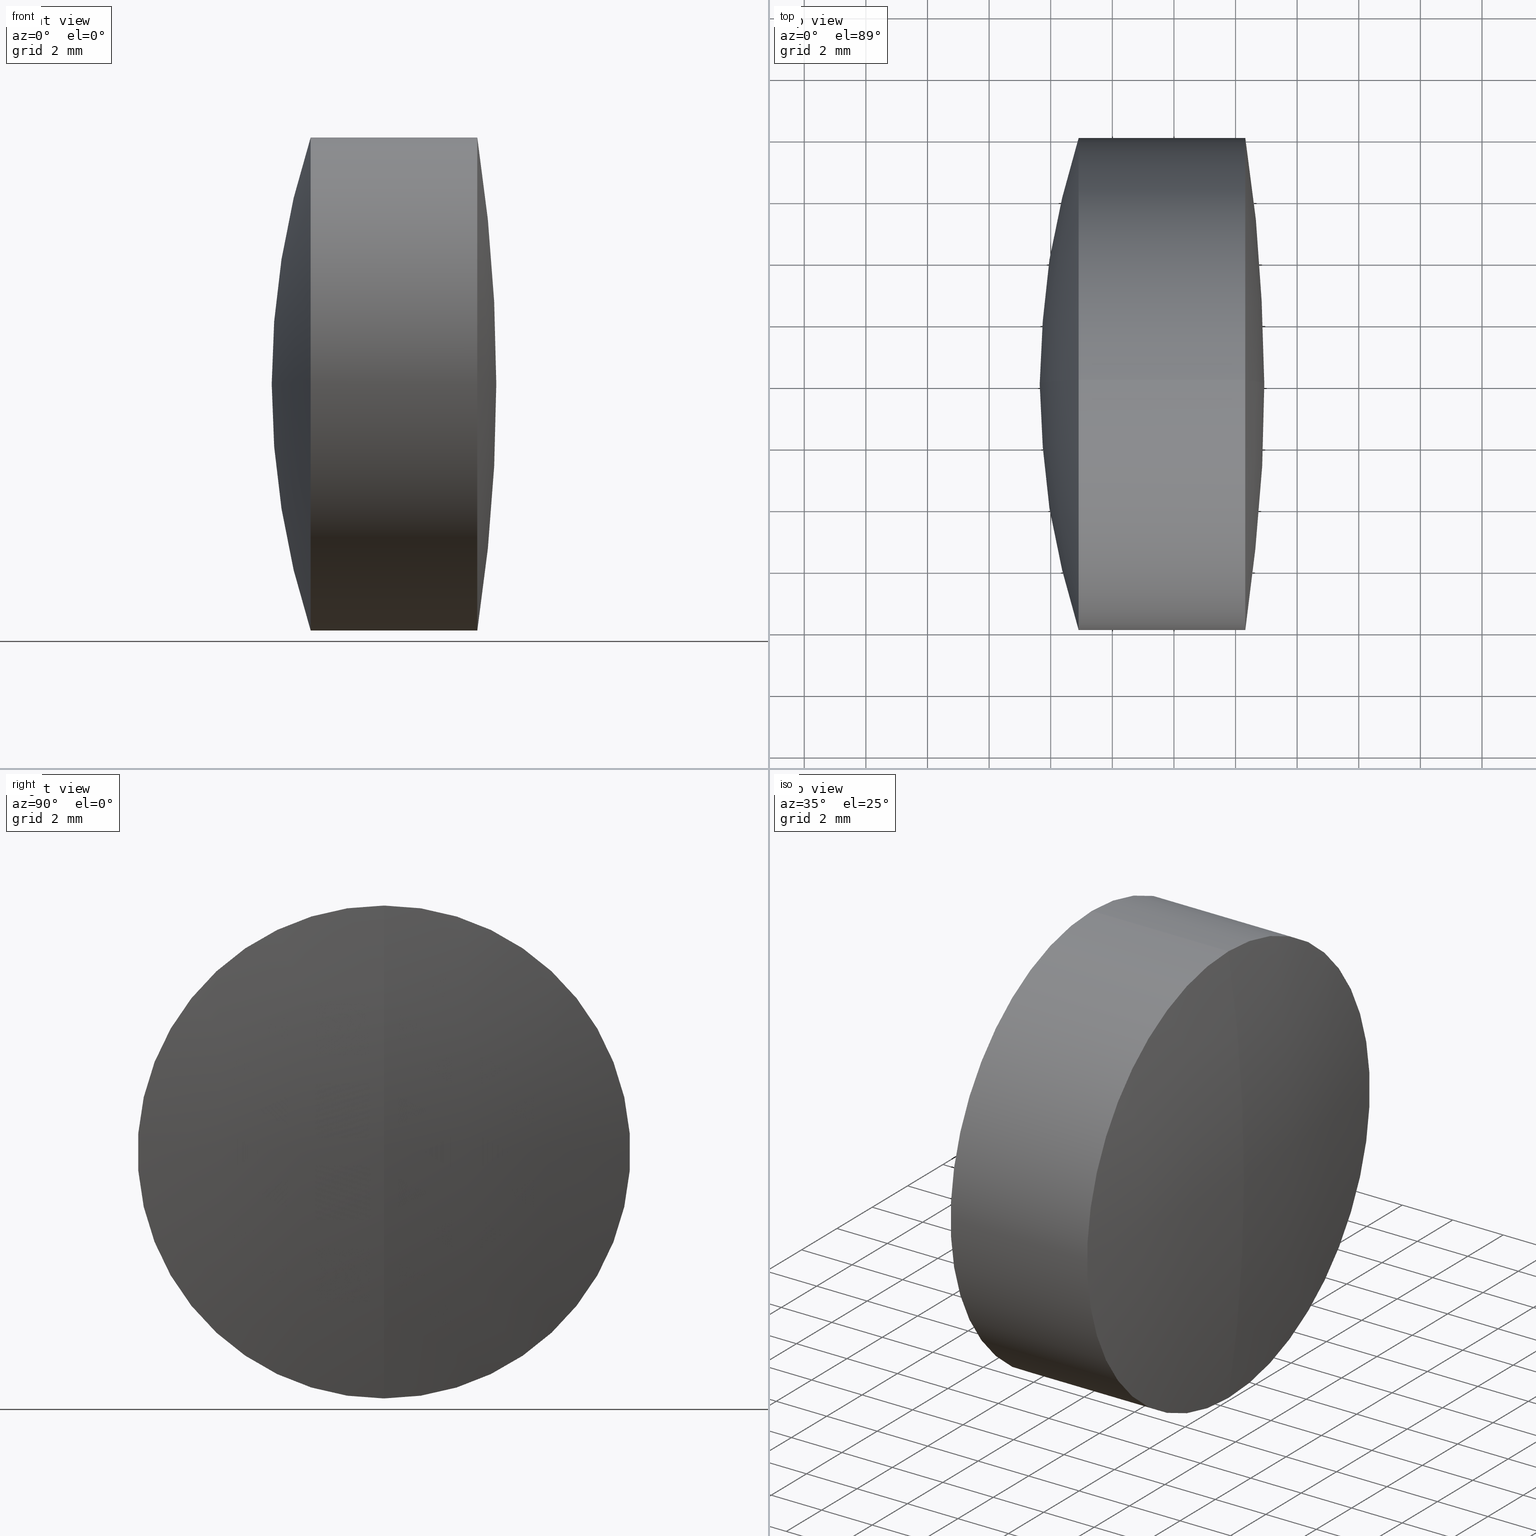
[diagram: canonical four-view strip — front | top / right | iso, engineering-drawing reading convention]
A machine part, canonical four-view strip (front | top / right | iso — engineering-drawing reading convention). The complete STEP part file that produces these views, byte-faithful:
ISO-10303-21;
HEADER;
FILE_DESCRIPTION (( 'STEP AP214' ),
    '1' );
FILE_NAME ('145032.STEP',
    '2019-05-11T03:39:28',
    ( 'user' ),
    ( '΢���й�' ),
    'SwSTEP 2.0',
    'SolidWorks 2016',
    '' );
FILE_SCHEMA (( 'AUTOMOTIVE_DESIGN' ));
ENDSEC;

DATA;
#1 =( NAMED_UNIT ( * ) PLANE_ANGLE_UNIT ( ) SI_UNIT ( $, .RADIAN. ) );
#2 = EDGE_CURVE ( 'NONE', #294, #319, #45, .T. ) ;
#3 = LINE ( 'NONE', #210, #97 ) ;
#4 = CARTESIAN_POINT ( 'NONE',  ( 26.31686387635513600, 0.0000000000000000000, 0.0000000000000000000 ) ) ;
#5 = ORIENTED_EDGE ( 'NONE', *, *, #343, .T. ) ;
#6 = CARTESIAN_POINT ( 'NONE',  ( 45.59904347957313300, 0.0000000000000000000, -1.740547722561040700E-016 ) ) ;
#7 = FACE_OUTER_BOUND ( 'NONE', #25, .T. ) ;
#8 = AXIS2_PLACEMENT_3D ( 'NONE', #269, #134, #163 ) ;
#9 = DIRECTION ( 'NONE',  ( -0.0000000000000000000, 1.000000000000000000, 1.224646799147353200E-016 ) ) ;
#10 = DIRECTION ( 'NONE',  ( 0.0000000000000000000, -1.000000000000000000, 0.0000000000000000000 ) ) ;
#11 = CARTESIAN_POINT ( 'NONE',  ( 24.53304347957312700, 0.0000000000000000000, 1.100059859623086400E-015 ) ) ;
#12 = DIRECTION ( 'NONE',  ( 0.0000000000000000000, 0.0000000000000000000, 1.000000000000000000 ) ) ;
#13 = CARTESIAN_POINT ( 'NONE',  ( -25.30795652042687400, 0.0000000000000000000, 0.0000000000000000000 ) ) ;
#14 = ADVANCED_FACE ( 'NONE', ( #113 ), #245, .T. ) ;
#15 = DIRECTION ( 'NONE',  ( -1.000000000000000000, -0.0000000000000000000, -0.0000000000000000000 ) ) ;
#16 = DIRECTION ( 'NONE',  ( 0.0000000000000000000, -1.000000000000000000, 0.0000000000000000000 ) ) ;
#17 = AXIS2_PLACEMENT_3D ( 'NONE', #4, #15, #335 ) ;
#18 = CARTESIAN_POINT ( 'NONE',  ( 22.70377877512568400, 9.797174393178823700E-016, -7.999999999999996400 ) ) ;
#19 =( NAMED_UNIT ( * ) PLANE_ANGLE_UNIT ( ) SI_UNIT ( $, .RADIAN. ) );
#20 = AXIS2_PLACEMENT_3D ( 'NONE', #6, #240, #212 ) ;
#21 = SPHERICAL_SURFACE ( 'NONE', #8, 18.40800000000000100 ) ;
#22 = SPHERICAL_SURFACE ( 'NONE', #204, 25.95600000000000700 ) ;
#23 =( GEOMETRIC_REPRESENTATION_CONTEXT ( 3 ) GLOBAL_UNCERTAINTY_ASSIGNED_CONTEXT ( ( #248 ) ) GLOBAL_UNIT_ASSIGNED_CONTEXT ( ( #140, #1, #193 ) ) REPRESENTATION_CONTEXT ( 'NONE', 'WORKASPACE' ) );
#24 = EDGE_CURVE ( 'NONE', #224, #88, #103, .T. ) ;
#25 = EDGE_LOOP ( 'NONE', ( #259, #137, #132 ) ) ;
#26 = UNCERTAINTY_MEASURE_WITH_UNIT (LENGTH_MEASURE( 1.000000000000000100E-005 ), #283, 'distance_accuracy_value', 'NONE');
#27 = CARTESIAN_POINT ( 'NONE',  ( 22.70377877512568100, 9.797174393178825700E-016, -8.000000000000000000 ) ) ;
#28 = AXIS2_PLACEMENT_3D ( 'NONE', #43, #10, #183 ) ;
#29 = SURFACE_STYLE_FILL_AREA ( #298 ) ;
#30 = DIRECTION ( 'NONE',  ( 0.0000000000000000000, 1.000000000000000000, 0.0000000000000000000 ) ) ;
#31 = DIRECTION ( 'NONE',  ( -1.000000000000000000, -0.0000000000000000000, -0.0000000000000000000 ) ) ;
#32 = VERTEX_POINT ( 'NONE', #292 ) ;
#33 = COLOUR_RGB ( '',1.000000000000000000, 1.000000000000000000, 1.000000000000000000 ) ;
#34 = CARTESIAN_POINT ( 'NONE',  ( -0.5519199926577972300, 0.0000000000000000000, 0.0000000000000000000 ) ) ;
#35 = AXIS2_PLACEMENT_3D ( 'NONE', #308, #114, #149 ) ;
#36 = PRESENTATION_STYLE_ASSIGNMENT (( #181 ) ) ;
#37 = VECTOR ( 'NONE', #109, 1000.000000000000000 ) ;
#38 = CARTESIAN_POINT ( 'NONE',  ( 6.125043479573127700, 0.0000000000000000000, -2.710505431213761100E-017 ) ) ;
#39 = ADVANCED_FACE ( 'NONE', ( #70 ), #76, .F. ) ;
#40 = DIRECTION ( 'NONE',  ( 0.0000000000000000000, 0.0000000000000000000, 1.000000000000000000 ) ) ;
#41 = PRODUCT_RELATED_PRODUCT_CATEGORY ( 'part', '', ( #241 ) ) ;
#42 = CARTESIAN_POINT ( 'NONE',  ( 22.70377877512568100, 0.0000000000000000000, 0.0000000000000000000 ) ) ;
#43 = CARTESIAN_POINT ( 'NONE',  ( -25.30795652042687400, 0.0000000000000000000, 0.0000000000000000000 ) ) ;
#44 = CARTESIAN_POINT ( 'NONE',  ( -0.5519199926577972300, 0.0000000000000000000, 7.999999999999996400 ) ) ;
#45 = CIRCLE ( 'NONE', #136, 52.24099999999999300 ) ;
#46 = AXIS2_PLACEMENT_3D ( 'NONE', #34, #31, #329 ) ;
#47 =( GEOMETRIC_REPRESENTATION_CONTEXT ( 3 ) GLOBAL_UNCERTAINTY_ASSIGNED_CONTEXT ( ( #93 ) ) GLOBAL_UNIT_ASSIGNED_CONTEXT ( ( #123, #120, #321 ) ) REPRESENTATION_CONTEXT ( 'NONE', 'WORKASPACE' ) );
#48 = SPHERICAL_SURFACE ( 'NONE', #108, 52.24099999999999300 ) ;
#49 = FACE_OUTER_BOUND ( 'NONE', #232, .T. ) ;
#50 = CIRCLE ( 'NONE', #179, 7.999999999999992900 ) ;
#51 = PRODUCT_DEFINITION_SHAPE ( 'NONE', 'NONE',  #151 ) ;
#52 = ORIENTED_EDGE ( 'NONE', *, *, #243, .T. ) ;
#53 = EDGE_CURVE ( 'NONE', #294, #32, #78, .T. ) ;
#54 = DIRECTION ( 'NONE',  ( -0.0000000000000000000, 1.000000000000000000, 1.224646799147353200E-016 ) ) ;
#55 = EDGE_LOOP ( 'NONE', ( #267, #121, #141 ) ) ;
#56 = CIRCLE ( 'NONE', #131, 25.95600000000000700 ) ;
#57 = CARTESIAN_POINT ( 'NONE',  ( 26.93304347957312200, 0.0000000000000000000, 3.198838671712843800E-015 ) ) ;
#58 = DIRECTION ( 'NONE',  ( -0.0000000000000000000, 1.000000000000000000, 1.224646799147353200E-016 ) ) ;
#59 = STYLED_ITEM ( 'NONE', ( #186 ), #153 ) ;
#60 = CARTESIAN_POINT ( 'NONE',  ( 22.70377877512568400, 0.0000000000000000000, 0.0000000000000000000 ) ) ;
#61 = DIRECTION ( 'NONE',  ( 0.0000000000000000000, 0.0000000000000000000, 1.000000000000000000 ) ) ;
#62 = ADVANCED_FACE ( 'NONE', ( #100 ), #48, .T. ) ;
#63 = CYLINDRICAL_SURFACE ( 'NONE', #119, 8.000000000000000000 ) ;
#64 = DIRECTION ( 'NONE',  ( -1.000000000000000000, -0.0000000000000000000, -0.0000000000000000000 ) ) ;
#65 = DIRECTION ( 'NONE',  ( -1.000000000000000000, -0.0000000000000000000, -0.0000000000000000000 ) ) ;
#66 = CARTESIAN_POINT ( 'NONE',  ( -9.702612178336682500, 0.0000000000000000000, 0.0000000000000000000 ) ) ;
#67 = PRESENTATION_LAYER_ASSIGNMENT (  '', '', ( #59 ) ) ;
#68 = VERTEX_POINT ( 'NONE', #260 ) ;
#69 = CARTESIAN_POINT ( 'NONE',  ( 20.90665728463440900, 0.0000000000000000000, 0.0000000000000000000 ) ) ;
#70 = FACE_OUTER_BOUND ( 'NONE', #176, .T. ) ;
#71 = CIRCLE ( 'NONE', #220, 7.999999999999998200 ) ;
#72 = DIRECTION ( 'NONE',  ( 0.0000000000000000000, -1.224646799147353200E-016, 1.000000000000000000 ) ) ;
#73 = PRODUCT_CONTEXT ( 'NONE', #187, 'mechanical' ) ;
#74 = DIRECTION ( 'NONE',  ( -1.000000000000000000, -0.0000000000000000000, -0.0000000000000000000 ) ) ;
#75 = MECHANICAL_DESIGN_GEOMETRIC_PRESENTATION_REPRESENTATION (  '', ( #59 ), #80 ) ;
#76 = SPHERICAL_SURFACE ( 'NONE', #172, 18.40800000000000100 ) ;
#77 = CARTESIAN_POINT ( 'NONE',  ( 45.59904347957313300, 0.0000000000000000000, -1.740547722561040700E-016 ) ) ;
#78 = CIRCLE ( 'NONE', #28, 52.24099999999999300 ) ;
#79 = SURFACE_SIDE_STYLE ('',( #81 ) ) ;
#80 =( GEOMETRIC_REPRESENTATION_CONTEXT ( 3 ) GLOBAL_UNCERTAINTY_ASSIGNED_CONTEXT ( ( #26 ) ) GLOBAL_UNIT_ASSIGNED_CONTEXT ( ( #283, #19, #340 ) ) REPRESENTATION_CONTEXT ( 'NONE', 'WORKASPACE' ) );
#81 = SURFACE_STYLE_FILL_AREA ( #139 ) ;
#82 = MANIFOLD_SOLID_BREP ( '��ת3', #304 ) ;
#83 = FACE_OUTER_BOUND ( 'NONE', #311, .T. ) ;
#84 = ORIENTED_EDGE ( 'NONE', *, *, #2, .F. ) ;
#85 = FACE_OUTER_BOUND ( 'NONE', #156, .T. ) ;
#86 = CARTESIAN_POINT ( 'NONE',  ( -9.702612178336682500, 0.0000000000000000000, 0.0000000000000000000 ) ) ;
#87 =( LENGTH_UNIT ( ) NAMED_UNIT ( * ) SI_UNIT ( .MILLI., .METRE. ) );
#88 = VERTEX_POINT ( 'NONE', #128 ) ;
#89 = DIRECTION ( 'NONE',  ( 0.0000000000000000000, 0.0000000000000000000, 1.000000000000000000 ) ) ;
#90 = EDGE_CURVE ( 'NONE', #201, #88, #56, .T. ) ;
#91 = ADVANCED_FACE ( 'NONE', ( #49 ), #21, .T. ) ;
#92 = CARTESIAN_POINT ( 'NONE',  ( 20.90665728463440900, 0.0000000000000000000, 7.999999999999996400 ) ) ;
#93 = UNCERTAINTY_MEASURE_WITH_UNIT (LENGTH_MEASURE( 1.000000000000000100E-005 ), #123, 'distance_accuracy_value', 'NONE');
#94 = FILL_AREA_STYLE_COLOUR ( '', #110 ) ;
#95 = AXIS2_PLACEMENT_3D ( 'NONE', #38, #16, #117 ) ;
#96 = FACE_OUTER_BOUND ( 'NONE', #300, .T. ) ;
#97 = VECTOR ( 'NONE', #112, 1000.000000000000000 ) ;
#98 = VECTOR ( 'NONE', #328, 1000.000000000000000 ) ;
#99 = AXIS2_PLACEMENT_3D ( 'NONE', #150, #89, #198 ) ;
#100 = FACE_OUTER_BOUND ( 'NONE', #337, .T. ) ;
#101 = ORIENTED_EDGE ( 'NONE', *, *, #346, .F. ) ;
#102 = AXIS2_PLACEMENT_3D ( 'NONE', #77, #58, #118 ) ;
#103 = CIRCLE ( 'NONE', #102, 25.95600000000000700 ) ;
#104 = LINE ( 'NONE', #310, #208 ) ;
#105 = CARTESIAN_POINT ( 'NONE',  ( 6.125043479573127700, 0.0000000000000000000, -2.710505431213761100E-017 ) ) ;
#106 = DIRECTION ( 'NONE',  ( 0.0000000000000000000, 0.0000000000000000000, 1.000000000000000000 ) ) ;
#107 = ORIENTED_EDGE ( 'NONE', *, *, #90, .T. ) ;
#108 = AXIS2_PLACEMENT_3D ( 'NONE', #207, #284, #242 ) ;
#109 = DIRECTION ( 'NONE',  ( -1.000000000000000000, -0.0000000000000000000, -0.0000000000000000000 ) ) ;
#110 = COLOUR_RGB ( '',1.000000000000000000, 1.000000000000000000, 1.000000000000000000 ) ;
#111 = DIRECTION ( 'NONE',  ( -1.000000000000000000, -0.0000000000000000000, -0.0000000000000000000 ) ) ;
#112 = DIRECTION ( 'NONE',  ( -1.000000000000000000, -0.0000000000000000000, -0.0000000000000000000 ) ) ;
#113 = FACE_OUTER_BOUND ( 'NONE', #178, .T. ) ;
#114 = DIRECTION ( 'NONE',  ( -1.000000000000000000, -0.0000000000000000000, -0.0000000000000000000 ) ) ;
#115 = DIRECTION ( 'NONE',  ( 0.0000000000000000000, 0.0000000000000000000, 1.000000000000000000 ) ) ;
#116 = CIRCLE ( 'NONE', #254, 18.40800000000000100 ) ;
#117 = DIRECTION ( 'NONE',  ( 0.0000000000000000000, 0.0000000000000000000, -1.000000000000000000 ) ) ;
#118 = DIRECTION ( 'NONE',  ( 0.0000000000000000000, -1.224646799147353200E-016, 1.000000000000000000 ) ) ;
#119 = AXIS2_PLACEMENT_3D ( 'NONE', #86, #162, #301 ) ;
#120 =( NAMED_UNIT ( * ) PLANE_ANGLE_UNIT ( ) SI_UNIT ( $, .RADIAN. ) );
#121 = ORIENTED_EDGE ( 'NONE', *, *, #188, .T. ) ;
#122 = ORIENTED_EDGE ( 'NONE', *, *, #290, .T. ) ;
#123 =( LENGTH_UNIT ( ) NAMED_UNIT ( * ) SI_UNIT ( .MILLI., .METRE. ) );
#124 = SHAPE_DEFINITION_REPRESENTATION ( #51, #153 ) ;
#125 = CARTESIAN_POINT ( 'NONE',  ( 6.125043479573127700, 0.0000000000000000000, -2.710505431213761100E-017 ) ) ;
#126 = MECHANICAL_DESIGN_GEOMETRIC_PRESENTATION_REPRESENTATION (  '', ( #282 ), #23 ) ;
#127 = LINE ( 'NONE', #44, #98 ) ;
#128 = CARTESIAN_POINT ( 'NONE',  ( 19.64304347957312300, 0.0000000000000000000, 1.415291843677331300E-015 ) ) ;
#129 = VERTEX_POINT ( 'NONE', #324 ) ;
#130 = CIRCLE ( 'NONE', #233, 8.000000000000000000 ) ;
#131 = AXIS2_PLACEMENT_3D ( 'NONE', #135, #295, #214 ) ;
#132 = ORIENTED_EDGE ( 'NONE', *, *, #191, .F. ) ;
#133 = CIRCLE ( 'NONE', #95, 18.40800000000000100 ) ;
#134 = DIRECTION ( 'NONE',  ( 0.0000000000000000000, 1.000000000000000000, 0.0000000000000000000 ) ) ;
#135 = CARTESIAN_POINT ( 'NONE',  ( 45.59904347957313300, 0.0000000000000000000, -1.740547722561040700E-016 ) ) ;
#136 = AXIS2_PLACEMENT_3D ( 'NONE', #317, #289, #226 ) ;
#137 = ORIENTED_EDGE ( 'NONE', *, *, #2, .T. ) ;
#138 = SPHERICAL_SURFACE ( 'NONE', #20, 25.95600000000000700 ) ;
#139 = FILL_AREA_STYLE ('',( #237 ) ) ;
#140 =( LENGTH_UNIT ( ) NAMED_UNIT ( * ) SI_UNIT ( .MILLI., .METRE. ) );
#141 = ORIENTED_EDGE ( 'NONE', *, *, #185, .T. ) ;
#142 = AXIS2_PLACEMENT_3D ( 'NONE', #278, #54, #216 ) ;
#143 = CARTESIAN_POINT ( 'NONE',  ( 6.125043479573127700, 0.0000000000000000000, -2.710505431213761100E-017 ) ) ;
#144 = UNCERTAINTY_MEASURE_WITH_UNIT (LENGTH_MEASURE( 1.000000000000000100E-005 ), #87, 'distance_accuracy_value', 'NONE');
#145 = DIRECTION ( 'NONE',  ( 0.0000000000000000000, 0.0000000000000000000, 1.000000000000000000 ) ) ;
#146 = CARTESIAN_POINT ( 'NONE',  ( 26.31686387635513600, 0.0000000000000000000, 0.0000000000000000000 ) ) ;
#147 = ORIENTED_EDGE ( 'NONE', *, *, #90, .F. ) ;
#148 = ORIENTED_EDGE ( 'NONE', *, *, #243, .F. ) ;
#149 = DIRECTION ( 'NONE',  ( 0.0000000000000000000, 0.0000000000000000000, 1.000000000000000000 ) ) ;
#150 = CARTESIAN_POINT ( 'NONE',  ( 0.0000000000000000000, 0.0000000000000000000, 0.0000000000000000000 ) ) ;
#151 = PRODUCT_DEFINITION ( 'δ֪', '', #155, #334 ) ;
#152 = CYLINDRICAL_SURFACE ( 'NONE', #46, 7.999999999999996400 ) ;
#153 = ADVANCED_BREP_SHAPE_REPRESENTATION ( '145032', ( #276, #82, #99 ), #47 ) ;
#154 = VERTEX_POINT ( 'NONE', #11 ) ;
#155 = PRODUCT_DEFINITION_FORMATION_WITH_SPECIFIED_SOURCE ( '�κ�', '', #241, .NOT_KNOWN. ) ;
#156 = EDGE_LOOP ( 'NONE', ( #285, #280, #107 ) ) ;
#157 = EDGE_CURVE ( 'NONE', #68, #201, #3, .T. ) ;
#158 = EDGE_CURVE ( 'NONE', #154, #159, #218, .T. ) ;
#159 = VERTEX_POINT ( 'NONE', #18 ) ;
#160 = ORIENTED_EDGE ( 'NONE', *, *, #343, .F. ) ;
#161 = CARTESIAN_POINT ( 'NONE',  ( 6.125043479573127700, 0.0000000000000000000, -2.710505431213761100E-017 ) ) ;
#162 = DIRECTION ( 'NONE',  ( -1.000000000000000000, -0.0000000000000000000, -0.0000000000000000000 ) ) ;
#163 = DIRECTION ( 'NONE',  ( 0.0000000000000000000, 0.0000000000000000000, 1.000000000000000000 ) ) ;
#164 = AXIS2_PLACEMENT_3D ( 'NONE', #13, #333, #171 ) ;
#165 = ORIENTED_EDGE ( 'NONE', *, *, #191, .T. ) ;
#166 = ORIENTED_EDGE ( 'NONE', *, *, #265, .T. ) ;
#167 = SURFACE_SIDE_STYLE ('',( #29 ) ) ;
#168 = ADVANCED_FACE ( 'NONE', ( #96 ), #152, .T. ) ;
#169 = DIRECTION ( 'NONE',  ( 0.0000000000000000000, 1.000000000000000000, 0.0000000000000000000 ) ) ;
#170 = CARTESIAN_POINT ( 'NONE',  ( 6.125043479573127700, 0.0000000000000000000, -2.710505431213761100E-017 ) ) ;
#171 = DIRECTION ( 'NONE',  ( 0.0000000000000000000, 0.0000000000000000000, 1.000000000000000000 ) ) ;
#172 = AXIS2_PLACEMENT_3D ( 'NONE', #105, #270, #200 ) ;
#173 = ADVANCED_FACE ( 'NONE', ( #83 ), #63, .T. ) ;
#174 = CARTESIAN_POINT ( 'NONE',  ( 22.70377877512568400, 0.0000000000000000000, 7.999999999999996400 ) ) ;
#175 = ADVANCED_FACE ( 'NONE', ( #287 ), #138, .T. ) ;
#176 = EDGE_LOOP ( 'NONE', ( #279, #326, #330 ) ) ;
#177 = FILL_AREA_STYLE_COLOUR ( '', #281 ) ;
#178 = EDGE_LOOP ( 'NONE', ( #213, #52, #325 ) ) ;
#179 = AXIS2_PLACEMENT_3D ( 'NONE', #146, #277, #268 ) ;
#180 = ORIENTED_EDGE ( 'NONE', *, *, #194, .F. ) ;
#181 = SURFACE_STYLE_USAGE ( .BOTH. , #79 ) ;
#182 = CYLINDRICAL_SURFACE ( 'NONE', #320, 7.999999999999996400 ) ;
#183 = DIRECTION ( 'NONE',  ( 0.0000000000000000000, 0.0000000000000000000, -1.000000000000000000 ) ) ;
#184 = VERTEX_POINT ( 'NONE', #174 ) ;
#185 = EDGE_CURVE ( 'NONE', #184, #159, #271, .T. ) ;
#186 = PRESENTATION_STYLE_ASSIGNMENT (( #192 ) ) ;
#187 = APPLICATION_CONTEXT ( 'automotive_design' ) ;
#188 = EDGE_CURVE ( 'NONE', #154, #184, #252, .T. ) ;
#189 = DIRECTION ( 'NONE',  ( 0.0000000000000000000, 0.0000000000000000000, 1.000000000000000000 ) ) ;
#190 = ORIENTED_EDGE ( 'NONE', *, *, #339, .F. ) ;
#191 = EDGE_CURVE ( 'NONE', #32, #319, #50, .T. ) ;
#192 = SURFACE_STYLE_USAGE ( .BOTH. , #250 ) ;
#193 =( NAMED_UNIT ( * ) SI_UNIT ( $, .STERADIAN. ) SOLID_ANGLE_UNIT ( ) );
#194 = EDGE_CURVE ( 'NONE', #319, #32, #347, .T. ) ;
#195 = ORIENTED_EDGE ( 'NONE', *, *, #346, .T. ) ;
#196 = DIRECTION ( 'NONE',  ( 0.0000000000000000000, 0.0000000000000000000, 1.000000000000000000 ) ) ;
#197 = CARTESIAN_POINT ( 'NONE',  ( 22.70377877512568100, 0.0000000000000000000, 0.0000000000000000000 ) ) ;
#198 = DIRECTION ( 'NONE',  ( 1.000000000000000000, 0.0000000000000000000, 0.0000000000000000000 ) ) ;
#199 = PRESENTATION_LAYER_ASSIGNMENT (  '', '', ( #282 ) ) ;
#200 = DIRECTION ( 'NONE',  ( 0.0000000000000000000, 0.0000000000000000000, 1.000000000000000000 ) ) ;
#201 = VERTEX_POINT ( 'NONE', #92 ) ;
#202 = AXIS2_PLACEMENT_3D ( 'NONE', #143, #303, #145 ) ;
#203 = ORIENTED_EDGE ( 'NONE', *, *, #211, .T. ) ;
#204 = AXIS2_PLACEMENT_3D ( 'NONE', #309, #169, #189 ) ;
#205 = VERTEX_POINT ( 'NONE', #27 ) ;
#206 = CARTESIAN_POINT ( 'NONE',  ( -9.702612178336682500, 9.797174393178825700E-016, -8.000000000000000000 ) ) ;
#207 = CARTESIAN_POINT ( 'NONE',  ( -25.30795652042687400, 0.0000000000000000000, 0.0000000000000000000 ) ) ;
#208 = VECTOR ( 'NONE', #221, 1000.000000000000000 ) ;
#209 = DIRECTION ( 'NONE',  ( 0.0000000000000000000, 0.0000000000000000000, 1.000000000000000000 ) ) ;
#210 = CARTESIAN_POINT ( 'NONE',  ( -9.702612178336682500, 0.0000000000000000000, 8.000000000000000000 ) ) ;
#211 = EDGE_CURVE ( 'NONE', #129, #68, #133, .T. ) ;
#212 = DIRECTION ( 'NONE',  ( 0.0000000000000000000, 0.0000000000000000000, 1.000000000000000000 ) ) ;
#213 = ORIENTED_EDGE ( 'NONE', *, *, #211, .F. ) ;
#214 = DIRECTION ( 'NONE',  ( 0.0000000000000000000, 0.0000000000000000000, -1.000000000000000000 ) ) ;
#215 = ADVANCED_FACE ( 'NONE', ( #227 ), #247, .F. ) ;
#216 = DIRECTION ( 'NONE',  ( 0.0000000000000000000, -1.224646799147353200E-016, 1.000000000000000000 ) ) ;
#217 = ORIENTED_EDGE ( 'NONE', *, *, #194, .T. ) ;
#218 = CIRCLE ( 'NONE', #142, 18.40800000000000100 ) ;
#219 = DIRECTION ( 'NONE',  ( 0.0000000000000000000, 0.0000000000000000000, 1.000000000000000000 ) ) ;
#220 = AXIS2_PLACEMENT_3D ( 'NONE', #297, #64, #40 ) ;
#221 = DIRECTION ( 'NONE',  ( -1.000000000000000000, -0.0000000000000000000, -0.0000000000000000000 ) ) ;
#222 = ADVANCED_FACE ( 'NONE', ( #7 ), #316, .T. ) ;
#223 = ADVANCED_FACE ( 'NONE', ( #274 ), #238, .T. ) ;
#224 = VERTEX_POINT ( 'NONE', #275 ) ;
#225 = AXIS2_PLACEMENT_3D ( 'NONE', #69, #74, #12 ) ;
#226 = DIRECTION ( 'NONE',  ( 0.0000000000000000000, -1.224646799147353200E-016, 1.000000000000000000 ) ) ;
#227 = FACE_OUTER_BOUND ( 'NONE', #55, .T. ) ;
#228 = EDGE_LOOP ( 'NONE', ( #160, #217, #262, #190 ) ) ;
#229 = ORIENTED_EDGE ( 'NONE', *, *, #342, .F. ) ;
#230 = AXIS2_PLACEMENT_3D ( 'NONE', #197, #251, #209 ) ;
#231 = CLOSED_SHELL ( 'NONE', ( #14, #223, #175, #336, #173, #91 ) ) ;
#232 = EDGE_LOOP ( 'NONE', ( #148, #203, #305 ) ) ;
#233 = AXIS2_PLACEMENT_3D ( 'NONE', #42, #249, #61 ) ;
#234 = SURFACE_STYLE_USAGE ( .BOTH. , #167 ) ;
#235 = ORIENTED_EDGE ( 'NONE', *, *, #185, .F. ) ;
#236 =( NAMED_UNIT ( * ) PLANE_ANGLE_UNIT ( ) SI_UNIT ( $, .RADIAN. ) );
#237 = FILL_AREA_STYLE_COLOUR ( '', #33 ) ;
#238 = CYLINDRICAL_SURFACE ( 'NONE', #323, 8.000000000000000000 ) ;
#239 = ADVANCED_FACE ( 'NONE', ( #315 ), #182, .T. ) ;
#240 = DIRECTION ( 'NONE',  ( 0.0000000000000000000, 1.000000000000000000, 0.0000000000000000000 ) ) ;
#241 = PRODUCT ( '145032', '145032', '', ( #73 ) ) ;
#242 = DIRECTION ( 'NONE',  ( 0.0000000000000000000, 0.0000000000000000000, 1.000000000000000000 ) ) ;
#243 = EDGE_CURVE ( 'NONE', #129, #205, #116, .T. ) ;
#244 = APPLICATION_PROTOCOL_DEFINITION ( 'draft international standard', 'automotive_design', 1998, #187 ) ;
#245 = SPHERICAL_SURFACE ( 'NONE', #344, 18.40800000000000100 ) ;
#246 = DIRECTION ( 'NONE',  ( -1.000000000000000000, -0.0000000000000000000, -0.0000000000000000000 ) ) ;
#247 = SPHERICAL_SURFACE ( 'NONE', #202, 18.40800000000000100 ) ;
#248 = UNCERTAINTY_MEASURE_WITH_UNIT (LENGTH_MEASURE( 1.000000000000000100E-005 ), #140, 'distance_accuracy_value', 'NONE');
#249 = DIRECTION ( 'NONE',  ( -1.000000000000000000, -0.0000000000000000000, -0.0000000000000000000 ) ) ;
#250 = SURFACE_SIDE_STYLE ('',( #264 ) ) ;
#251 = DIRECTION ( 'NONE',  ( -1.000000000000000000, -0.0000000000000000000, -0.0000000000000000000 ) ) ;
#252 = CIRCLE ( 'NONE', #313, 18.40800000000000100 ) ;
#253 = APPLICATION_CONTEXT ( 'automotive_design' ) ;
#254 = AXIS2_PLACEMENT_3D ( 'NONE', #125, #9, #72 ) ;
#255 = APPLICATION_PROTOCOL_DEFINITION ( 'draft international standard', 'automotive_design', 1998, #253 ) ;
#256 = ORIENTED_EDGE ( 'NONE', *, *, #157, .T. ) ;
#257 =( GEOMETRIC_REPRESENTATION_CONTEXT ( 3 ) GLOBAL_UNCERTAINTY_ASSIGNED_CONTEXT ( ( #144 ) ) GLOBAL_UNIT_ASSIGNED_CONTEXT ( ( #87, #236, #341 ) ) REPRESENTATION_CONTEXT ( 'NONE', 'WORKASPACE' ) );
#258 = ORIENTED_EDGE ( 'NONE', *, *, #273, .T. ) ;
#259 = ORIENTED_EDGE ( 'NONE', *, *, #53, .F. ) ;
#260 = CARTESIAN_POINT ( 'NONE',  ( 22.70377877512568100, 0.0000000000000000000, 8.000000000000000000 ) ) ;
#261 = LINE ( 'NONE', #206, #37 ) ;
#262 = ORIENTED_EDGE ( 'NONE', *, *, #342, .T. ) ;
#263 = MECHANICAL_DESIGN_GEOMETRIC_PRESENTATION_REPRESENTATION (  '', ( #302 ), #257 ) ;
#264 = SURFACE_STYLE_FILL_AREA ( #272 ) ;
#265 = EDGE_CURVE ( 'NONE', #205, #224, #261, .T. ) ;
#266 = CARTESIAN_POINT ( 'NONE',  ( -0.5519199926577972300, 0.0000000000000000000, 0.0000000000000000000 ) ) ;
#267 = ORIENTED_EDGE ( 'NONE', *, *, #158, .F. ) ;
#268 = DIRECTION ( 'NONE',  ( 0.0000000000000000000, 0.0000000000000000000, 1.000000000000000000 ) ) ;
#269 = CARTESIAN_POINT ( 'NONE',  ( 6.125043479573127700, 0.0000000000000000000, -2.710505431213761100E-017 ) ) ;
#270 = DIRECTION ( 'NONE',  ( 0.0000000000000000000, 1.000000000000000000, 0.0000000000000000000 ) ) ;
#271 = CIRCLE ( 'NONE', #327, 7.999999999999998200 ) ;
#272 = FILL_AREA_STYLE ('',( #177 ) ) ;
#273 = EDGE_CURVE ( 'NONE', #68, #205, #322, .T. ) ;
#274 = FACE_OUTER_BOUND ( 'NONE', #293, .T. ) ;
#275 = CARTESIAN_POINT ( 'NONE',  ( 20.90665728463440900, 9.797174393178823700E-016, -7.999999999999996400 ) ) ;
#276 = MANIFOLD_SOLID_BREP ( '��ת1', #231 ) ;
#277 = DIRECTION ( 'NONE',  ( -1.000000000000000000, -0.0000000000000000000, -0.0000000000000000000 ) ) ;
#278 = CARTESIAN_POINT ( 'NONE',  ( 6.125043479573127700, 0.0000000000000000000, -2.710505431213761100E-017 ) ) ;
#279 = ORIENTED_EDGE ( 'NONE', *, *, #188, .F. ) ;
#280 = ORIENTED_EDGE ( 'NONE', *, *, #299, .T. ) ;
#281 = COLOUR_RGB ( '',1.000000000000000000, 1.000000000000000000, 1.000000000000000000 ) ;
#282 = STYLED_ITEM ( 'NONE', ( #36 ), #82 ) ;
#283 =( LENGTH_UNIT ( ) NAMED_UNIT ( * ) SI_UNIT ( .MILLI., .METRE. ) );
#284 = DIRECTION ( 'NONE',  ( 0.0000000000000000000, 1.000000000000000000, 0.0000000000000000000 ) ) ;
#285 = ORIENTED_EDGE ( 'NONE', *, *, #24, .F. ) ;
#286 = PRESENTATION_LAYER_ASSIGNMENT (  '', '', ( #302 ) ) ;
#287 = FACE_OUTER_BOUND ( 'NONE', #291, .T. ) ;
#288 = ORIENTED_EDGE ( 'NONE', *, *, #24, .T. ) ;
#289 = DIRECTION ( 'NONE',  ( -0.0000000000000000000, 1.000000000000000000, 1.224646799147353200E-016 ) ) ;
#290 = EDGE_CURVE ( 'NONE', #205, #68, #130, .T. ) ;
#291 = EDGE_LOOP ( 'NONE', ( #195, #288, #147 ) ) ;
#292 = CARTESIAN_POINT ( 'NONE',  ( 26.31686387635513600, 0.0000000000000000000, 7.999999999999992900 ) ) ;
#293 = EDGE_LOOP ( 'NONE', ( #258, #166, #101, #314 ) ) ;
#294 = VERTEX_POINT ( 'NONE', #57 ) ;
#295 = DIRECTION ( 'NONE',  ( 0.0000000000000000000, -1.000000000000000000, 0.0000000000000000000 ) ) ;
#296 = CIRCLE ( 'NONE', #225, 8.000000000000000000 ) ;
#297 = CARTESIAN_POINT ( 'NONE',  ( 22.70377877512568400, 0.0000000000000000000, 0.0000000000000000000 ) ) ;
#298 = FILL_AREA_STYLE ('',( #94 ) ) ;
#299 = EDGE_CURVE ( 'NONE', #224, #201, #296, .T. ) ;
#300 = EDGE_LOOP ( 'NONE', ( #165, #5, #235, #229 ) ) ;
#301 = DIRECTION ( 'NONE',  ( 0.0000000000000000000, 0.0000000000000000000, 1.000000000000000000 ) ) ;
#302 = STYLED_ITEM ( 'NONE', ( #307 ), #276 ) ;
#303 = DIRECTION ( 'NONE',  ( 0.0000000000000000000, 1.000000000000000000, 0.0000000000000000000 ) ) ;
#304 = CLOSED_SHELL ( 'NONE', ( #222, #168, #39, #215, #239, #62 ) ) ;
#305 = ORIENTED_EDGE ( 'NONE', *, *, #290, .F. ) ;
#306 = DIRECTION ( 'NONE',  ( 0.0000000000000000000, -1.000000000000000000, 0.0000000000000000000 ) ) ;
#307 = PRESENTATION_STYLE_ASSIGNMENT (( #234 ) ) ;
#308 = CARTESIAN_POINT ( 'NONE',  ( 20.90665728463440900, 0.0000000000000000000, 0.0000000000000000000 ) ) ;
#309 = CARTESIAN_POINT ( 'NONE',  ( 45.59904347957313300, 0.0000000000000000000, -1.740547722561040700E-016 ) ) ;
#310 = CARTESIAN_POINT ( 'NONE',  ( -0.5519199926577972300, 9.797174393178821700E-016, -7.999999999999996400 ) ) ;
#311 = EDGE_LOOP ( 'NONE', ( #318, #122, #256, #345 ) ) ;
#312 = CARTESIAN_POINT ( 'NONE',  ( 26.31686387635513600, 9.797174393178819700E-016, -7.999999999999992900 ) ) ;
#313 = AXIS2_PLACEMENT_3D ( 'NONE', #161, #306, #331 ) ;
#314 = ORIENTED_EDGE ( 'NONE', *, *, #157, .F. ) ;
#315 = FACE_OUTER_BOUND ( 'NONE', #228, .T. ) ;
#316 = SPHERICAL_SURFACE ( 'NONE', #164, 52.24099999999999300 ) ;
#317 = CARTESIAN_POINT ( 'NONE',  ( -25.30795652042687400, 0.0000000000000000000, 0.0000000000000000000 ) ) ;
#318 = ORIENTED_EDGE ( 'NONE', *, *, #265, .F. ) ;
#319 = VERTEX_POINT ( 'NONE', #312 ) ;
#320 = AXIS2_PLACEMENT_3D ( 'NONE', #266, #65, #196 ) ;
#321 =( NAMED_UNIT ( * ) SI_UNIT ( $, .STERADIAN. ) SOLID_ANGLE_UNIT ( ) );
#322 = CIRCLE ( 'NONE', #230, 8.000000000000000000 ) ;
#323 = AXIS2_PLACEMENT_3D ( 'NONE', #66, #246, #219 ) ;
#324 = CARTESIAN_POINT ( 'NONE',  ( 24.53304347957312700, 0.0000000000000000000, 1.100059859623086400E-015 ) ) ;
#325 = ORIENTED_EDGE ( 'NONE', *, *, #273, .F. ) ;
#326 = ORIENTED_EDGE ( 'NONE', *, *, #158, .T. ) ;
#327 = AXIS2_PLACEMENT_3D ( 'NONE', #60, #111, #106 ) ;
#328 = DIRECTION ( 'NONE',  ( -1.000000000000000000, -0.0000000000000000000, -0.0000000000000000000 ) ) ;
#329 = DIRECTION ( 'NONE',  ( 0.0000000000000000000, 0.0000000000000000000, 1.000000000000000000 ) ) ;
#330 = ORIENTED_EDGE ( 'NONE', *, *, #339, .T. ) ;
#331 = DIRECTION ( 'NONE',  ( 0.0000000000000000000, 0.0000000000000000000, -1.000000000000000000 ) ) ;
#332 = CIRCLE ( 'NONE', #35, 8.000000000000000000 ) ;
#333 = DIRECTION ( 'NONE',  ( 0.0000000000000000000, 1.000000000000000000, 0.0000000000000000000 ) ) ;
#334 = PRODUCT_DEFINITION_CONTEXT ( 'detailed design', #253, 'design' ) ;
#335 = DIRECTION ( 'NONE',  ( 0.0000000000000000000, 0.0000000000000000000, 1.000000000000000000 ) ) ;
#336 = ADVANCED_FACE ( 'NONE', ( #85 ), #22, .T. ) ;
#337 = EDGE_LOOP ( 'NONE', ( #84, #338, #180 ) ) ;
#338 = ORIENTED_EDGE ( 'NONE', *, *, #53, .T. ) ;
#339 = EDGE_CURVE ( 'NONE', #159, #184, #71, .T. ) ;
#340 =( NAMED_UNIT ( * ) SI_UNIT ( $, .STERADIAN. ) SOLID_ANGLE_UNIT ( ) );
#341 =( NAMED_UNIT ( * ) SI_UNIT ( $, .STERADIAN. ) SOLID_ANGLE_UNIT ( ) );
#342 = EDGE_CURVE ( 'NONE', #32, #184, #127, .T. ) ;
#343 = EDGE_CURVE ( 'NONE', #319, #159, #104, .T. ) ;
#344 = AXIS2_PLACEMENT_3D ( 'NONE', #170, #30, #115 ) ;
#345 = ORIENTED_EDGE ( 'NONE', *, *, #299, .F. ) ;
#346 = EDGE_CURVE ( 'NONE', #201, #224, #332, .T. ) ;
#347 = CIRCLE ( 'NONE', #17, 7.999999999999992900 ) ;
ENDSEC;
END-ISO-10303-21;
